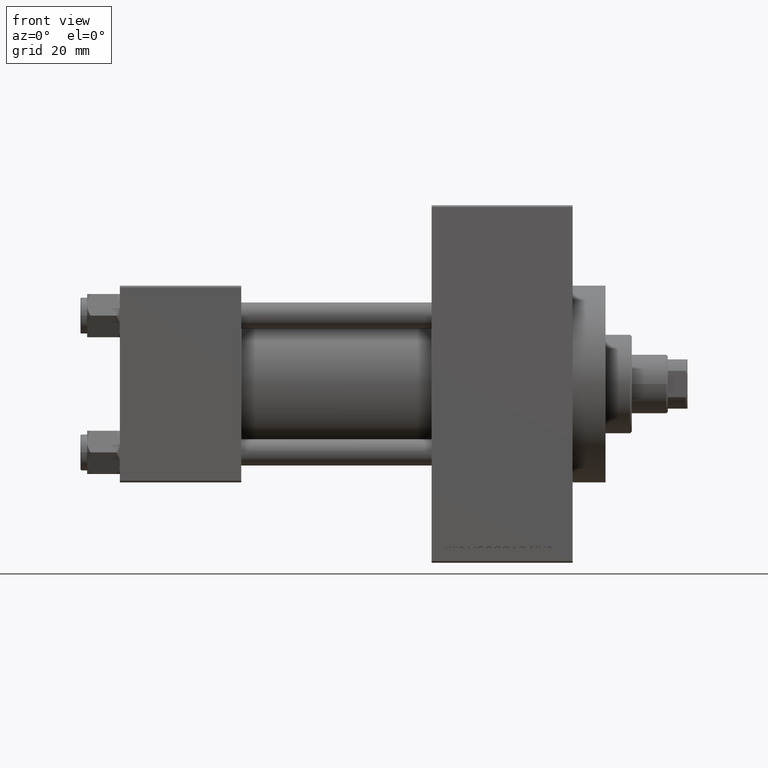
[diagram: clean part render]
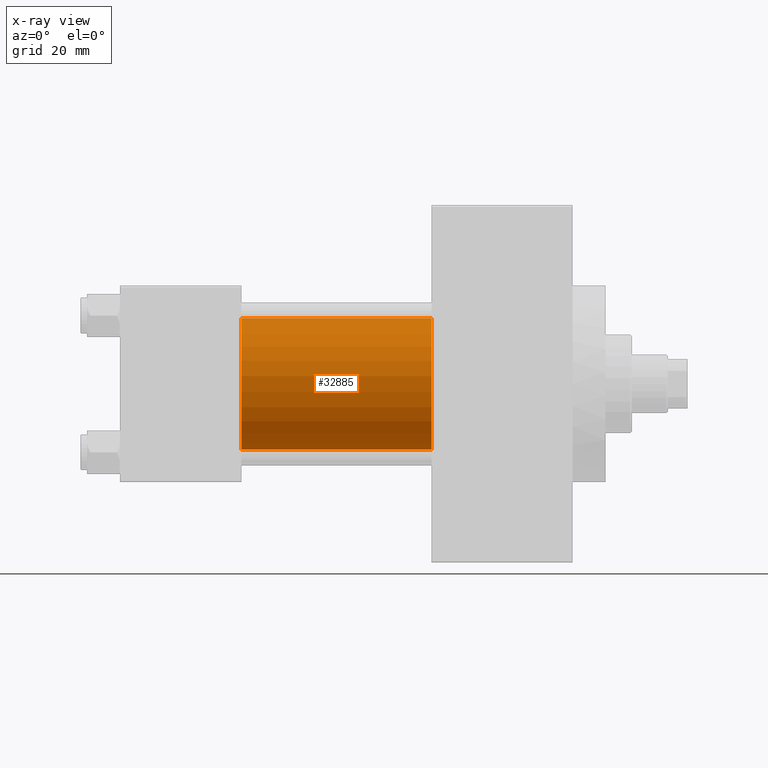
[diagram: x-ray — body ghosted, one internal face saturated and labeled with its STEP entity id]
A machine part, front view, then the same camera in x-ray: the body is ghosted and one INTERNAL B-rep face — a face not visible from any outside direction — is saturated and labeled: STEP entity #32885.
In plain terms, the highlighted cylindrical surface (partial cylindrical patch) has radius 20 mm, axis along (-1, -0, -0).
Its self-contained STEP definition (entity closure, byte-faithful):
#933 = CARTESIAN_POINT ( 'NONE',  ( 37.00000000000000000, -1.527916156705046464E-16, -20.00000000000000000 ) ) ;
#2046 = LINE ( 'NONE', #41235, #22546 ) ;
#2343 = CARTESIAN_POINT ( 'NONE',  ( 95.00000000000000000, -2.602085213965210642E-15, 0.000000000000000000 ) ) ;
#2568 = DIRECTION ( 'NONE',  ( 1.000000000000000000, 0.000000000000000000, 0.000000000000000000 ) ) ;
#5045 = DIRECTION ( 'NONE',  ( -1.000000000000000000, -0.000000000000000000, -0.000000000000000000 ) ) ;
#8365 = DIRECTION ( 'NONE',  ( -1.000000000000000000, -0.000000000000000000, -0.000000000000000000 ) ) ;
#11075 = VERTEX_POINT ( 'NONE', #32004 ) ;
#12021 = DIRECTION ( 'NONE',  ( 1.000000000000000000, 0.000000000000000000, 0.000000000000000000 ) ) ;
#12666 = FACE_OUTER_BOUND ( 'NONE', #28765, .T. ) ;
#13046 = AXIS2_PLACEMENT_3D ( 'NONE', #16970, #2568, #13599 ) ;
#13210 = ORIENTED_EDGE ( 'NONE', *, *, #31681, .T. ) ;
#13599 = DIRECTION ( 'NONE',  ( 0.000000000000000000, 0.000000000000000000, -1.000000000000000000 ) ) ;
#15365 = VERTEX_POINT ( 'NONE', #20868 ) ;
#16027 = DIRECTION ( 'NONE',  ( -1.000000000000000000, -0.000000000000000000, -0.000000000000000000 ) ) ;
#16970 = CARTESIAN_POINT ( 'NONE',  ( 37.00000000000000000, -2.602085213965210642E-15, 0.000000000000000000 ) ) ;
#17814 = CARTESIAN_POINT ( 'NONE',  ( 95.00000000000000000, -2.602085213965210642E-15, 20.00000000000000000 ) ) ;
#20298 = AXIS2_PLACEMENT_3D ( 'NONE', #44659, #12021, #22327 ) ;
#20868 = CARTESIAN_POINT ( 'NONE',  ( 95.00000000000000000, -1.527916156705046464E-16, -20.00000000000000000 ) ) ;
#22327 = DIRECTION ( 'NONE',  ( 0.000000000000000000, 0.000000000000000000, -1.000000000000000000 ) ) ;
#22546 = VECTOR ( 'NONE', #8365, 1000.000000000000000 ) ;
#23990 = ORIENTED_EDGE ( 'NONE', *, *, #44470, .T. ) ;
#26816 = CIRCLE ( 'NONE', #13046, 20.00000000000000000 ) ;
#26900 = VERTEX_POINT ( 'NONE', #17814 ) ;
#28765 = EDGE_LOOP ( 'NONE', ( #23990, #13210, #43317, #44934 ) ) ;
#29023 = EDGE_CURVE ( 'NONE', #11075, #47075, #26816, .T. ) ;
#31681 = EDGE_CURVE ( 'NONE', #15365, #47075, #42470, .T. ) ;
#32004 = CARTESIAN_POINT ( 'NONE',  ( 37.00000000000000000, -2.602085213965210642E-15, 20.00000000000000000 ) ) ;
#32885 = ADVANCED_FACE ( 'NONE', ( #12666 ), #38581, .F. ) ;
#38388 = CARTESIAN_POINT ( 'NONE',  ( 95.00000000000000000, -1.527916156705046464E-16, -20.00000000000000000 ) ) ;
#38581 = CYLINDRICAL_SURFACE ( 'NONE', #42270, 20.00000000000000000 ) ;
#40990 = CIRCLE ( 'NONE', #20298, 20.00000000000000000 ) ;
#41235 = CARTESIAN_POINT ( 'NONE',  ( 95.00000000000000000, -2.602085213965210642E-15, 20.00000000000000000 ) ) ;
#42270 = AXIS2_PLACEMENT_3D ( 'NONE', #2343, #16027, #45550 ) ;
#42470 = LINE ( 'NONE', #38388, #45292 ) ;
#43317 = ORIENTED_EDGE ( 'NONE', *, *, #29023, .F. ) ;
#43991 = EDGE_CURVE ( 'NONE', #26900, #11075, #2046, .T. ) ;
#44470 = EDGE_CURVE ( 'NONE', #26900, #15365, #40990, .T. ) ;
#44659 = CARTESIAN_POINT ( 'NONE',  ( 95.00000000000000000, -2.602085213965210642E-15, 0.000000000000000000 ) ) ;
#44934 = ORIENTED_EDGE ( 'NONE', *, *, #43991, .F. ) ;
#45292 = VECTOR ( 'NONE', #5045, 1000.000000000000000 ) ;
#45550 = DIRECTION ( 'NONE',  ( 0.000000000000000000, 0.000000000000000000, 1.000000000000000000 ) ) ;
#47075 = VERTEX_POINT ( 'NONE', #933 ) ;